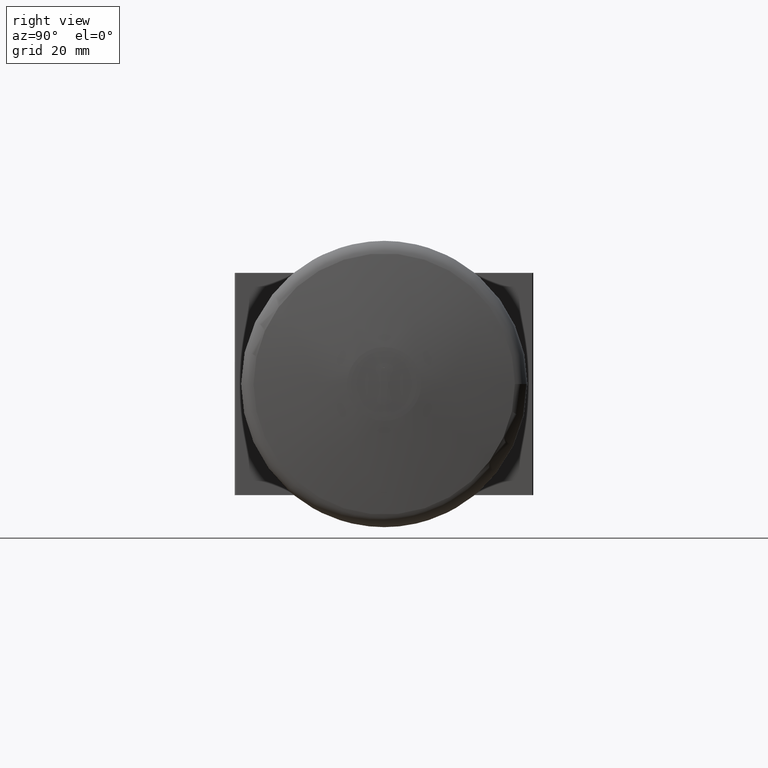
[diagram: clean part render]
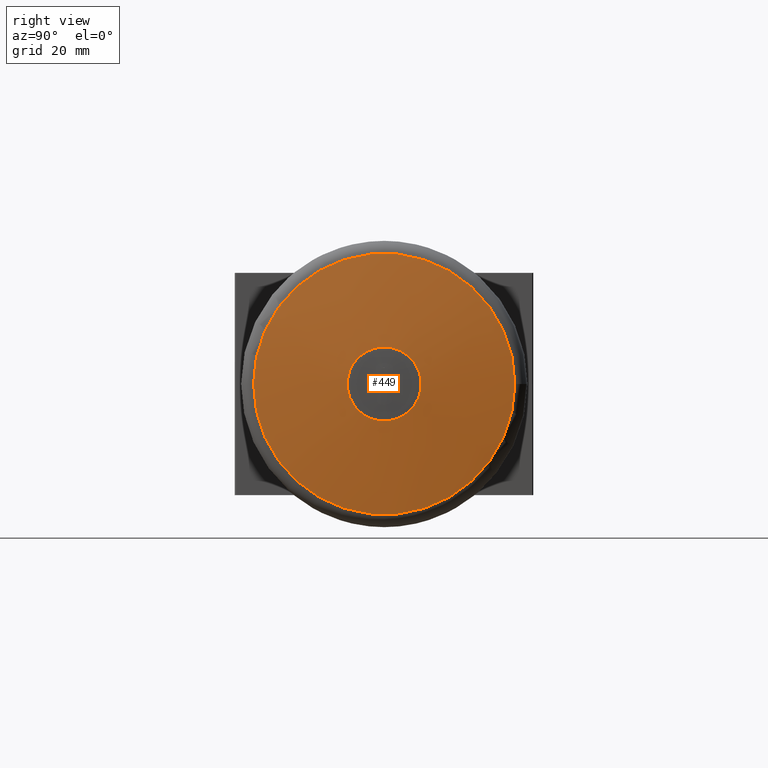
[diagram: same view with one face highlighted and labeled with its STEP entity id]
A machine part, right view. The second image highlights one B-rep face of the part: STEP entity #449.
In plain terms, the highlighted spherical surface has radius 173 mm.
Its self-contained STEP definition (entity closure, byte-faithful):
#202=CARTESIAN_POINT('',(46.043345409070383,-16.905709171661403,7.500000000000000));
#203=VERTEX_POINT('',#202);
#204=CARTESIAN_POINT('',(46.043345409070383,-16.905709171661403,0.0));
#205=DIRECTION('',(-1.0,0.0,0.0));
#206=DIRECTION('',(0.0,0.0,-1.0));
#207=AXIS2_PLACEMENT_3D('',#204,#205,#206);
#208=CIRCLE('',#207,7.500000000000000);
#209=EDGE_CURVE('',#203,#203,#208,.T.);
#430=CARTESIAN_POINT('',(-126.794005878187210,-16.905709171661396,0.0));
#431=DIRECTION('',(0.0,0.0,1.0));
#432=DIRECTION('',(1.0,0.0,0.0));
#433=AXIS2_PLACEMENT_3D('',#430,#431,#432);
#434=SPHERICAL_SURFACE('',#433,172.999999999985220);
#435=CARTESIAN_POINT('',(44.170700004150724,9.553114357750406,0.0));
#436=VERTEX_POINT('',#435);
#437=CARTESIAN_POINT('',(44.170700004150724,-16.905709171661403,0.0));
#438=DIRECTION('',(1.0,0.0,0.0));
#439=DIRECTION('',(0.0,1.0,0.0));
#440=AXIS2_PLACEMENT_3D('',#437,#438,#439);
#441=CIRCLE('',#440,26.458823529411809);
#442=EDGE_CURVE('',#436,#436,#441,.T.);
#443=ORIENTED_EDGE('',*,*,#442,.T.);
#444=EDGE_LOOP('',(#443));
#445=FACE_OUTER_BOUND('',#444,.T.);
#446=ORIENTED_EDGE('',*,*,#209,.T.);
#447=EDGE_LOOP('',(#446));
#448=FACE_BOUND('',#447,.T.);
#449=ADVANCED_FACE('',(#445,#448),#434,.T.);